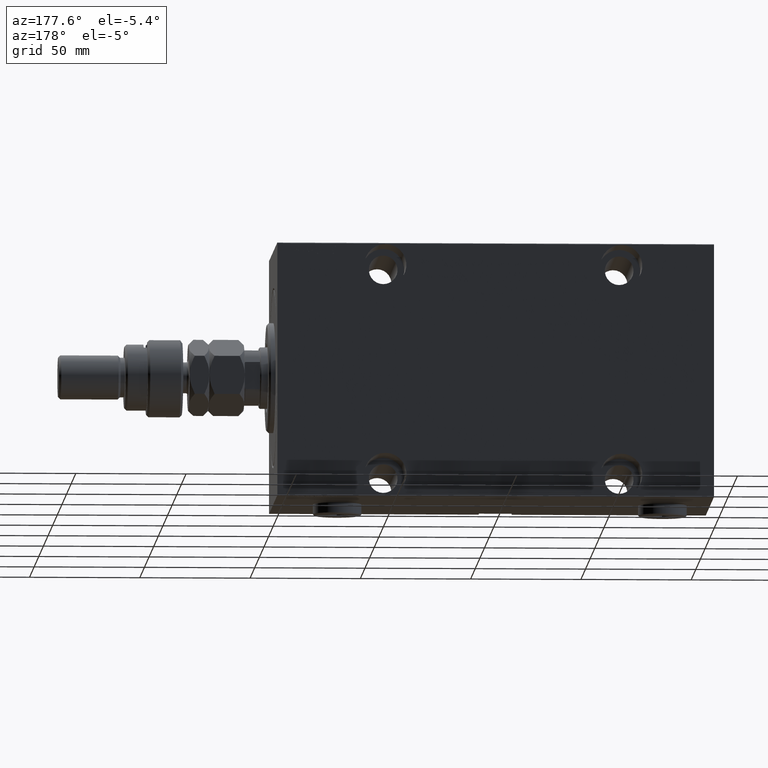
[diagram: clean part render]
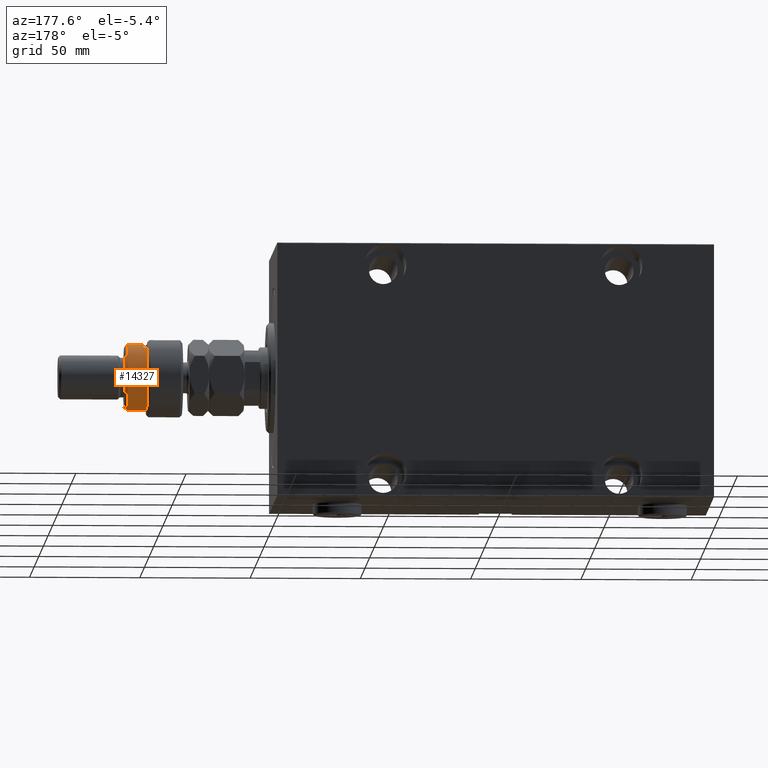
[diagram: same view with one face highlighted and labeled with its STEP entity id]
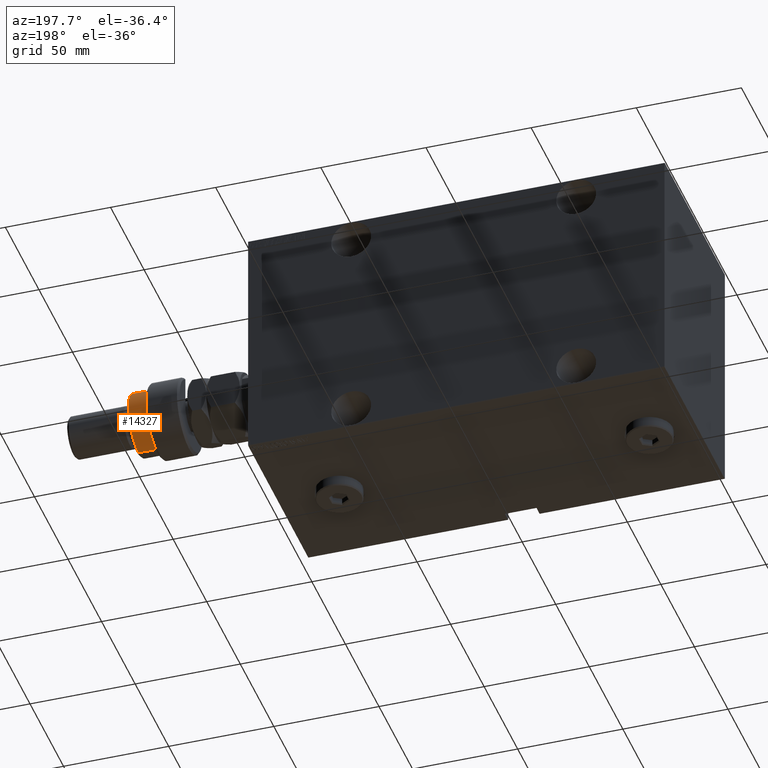
[diagram: same view with one face highlighted and labeled with its STEP entity id]
A machine part, auxiliary view. The second image highlights one B-rep face of the part: STEP entity #14327.
A second angle (auxiliary view) of the same face is appended — the face is thin or edge-on in the first view.
In plain terms, the highlighted cylindrical surface (edge-blend (fillet) strip) has radius 15 mm, axis along (-1, -0, 0).
Its self-contained STEP definition (entity closure, byte-faithful):
#516 = CARTESIAN_POINT ( 'NONE',  ( 0.000000000000000000, 0.000000000000000000, 24.99999999999997868 ) ) ;
#683 = VERTEX_POINT ( 'NONE', #44622 ) ;
#968 = CARTESIAN_POINT ( 'NONE',  ( 0.000000000000000000, 0.000000000000000000, 16.00000000000000000 ) ) ;
#3184 = CARTESIAN_POINT ( 'NONE',  ( 15.00000000000000000, 1.836970198721029589E-15, 16.00000000000000000 ) ) ;
#4991 = CIRCLE ( 'NONE', #13378, 15.00000000000000000 ) ;
#5598 = ORIENTED_EDGE ( 'NONE', *, *, #11530, .T. ) ;
#6323 = DIRECTION ( 'NONE',  ( 0.000000000000000000, 0.000000000000000000, 1.000000000000000000 ) ) ;
#7196 = CARTESIAN_POINT ( 'NONE',  ( 15.00000000000000000, 1.836970198721029589E-15, 24.99999999999997868 ) ) ;
#7782 = CARTESIAN_POINT ( 'NONE',  ( -15.00000000000000000, 0.000000000000000000, 17.50000000000000000 ) ) ;
#8244 = EDGE_CURVE ( 'NONE', #32074, #683, #30229, .T. ) ;
#8253 = CARTESIAN_POINT ( 'NONE',  ( 0.000000000000000000, 0.000000000000000000, 17.50000000000000000 ) ) ;
#9062 = CIRCLE ( 'NONE', #21980, 15.00000000000000000 ) ;
#9097 = VECTOR ( 'NONE', #25297, 1000.000000000000000 ) ;
#9400 = CARTESIAN_POINT ( 'NONE',  ( 15.00000000000000000, 1.836970198721029589E-15, 26.00000000000000355 ) ) ;
#9677 = CARTESIAN_POINT ( 'NONE',  ( -12.99038105676658006, 7.500000000000000000, 26.00000000000000355 ) ) ;
#11530 = EDGE_CURVE ( 'NONE', #14028, #26766, #38763, .T. ) ;
#12162 = ORIENTED_EDGE ( 'NONE', *, *, #31096, .T. ) ;
#13378 = AXIS2_PLACEMENT_3D ( 'NONE', #968, #27213, #30317 ) ;
#14028 = VERTEX_POINT ( 'NONE', #7196 ) ;
#14096 = EDGE_LOOP ( 'NONE', ( #46860, #5598, #12162, #31317, #17035, #32015 ) ) ;
#14327 = ADVANCED_FACE ( 'NONE', ( #36929 ), #35344, .T. ) ;
#14692 = VECTOR ( 'NONE', #23945, 1000.000000000000000 ) ;
#15075 = DIRECTION ( 'NONE',  ( 0.000000000000000000, 0.000000000000000000, -1.000000000000000000 ) ) ;
#16480 = CARTESIAN_POINT ( 'NONE',  ( -12.99038105676658006, 7.500000000000000000, 16.00000000000000000 ) ) ;
#17035 = ORIENTED_EDGE ( 'NONE', *, *, #8244, .F. ) ;
#18362 = LINE ( 'NONE', #25526, #9097 ) ;
#19005 = CARTESIAN_POINT ( 'NONE',  ( 0.000000000000000000, 0.000000000000000000, 26.00000000000000355 ) ) ;
#19248 = DIRECTION ( 'NONE',  ( -1.000000000000000000, 0.000000000000000000, 0.000000000000000000 ) ) ;
#21840 = AXIS2_PLACEMENT_3D ( 'NONE', #8253, #22805, #41444 ) ;
#21980 = AXIS2_PLACEMENT_3D ( 'NONE', #516, #15075, #32513 ) ;
#22805 = DIRECTION ( 'NONE',  ( 0.000000000000000000, 0.000000000000000000, -1.000000000000000000 ) ) ;
#23945 = DIRECTION ( 'NONE',  ( -0.000000000000000000, -0.000000000000000000, -1.000000000000000000 ) ) ;
#25297 = DIRECTION ( 'NONE',  ( -0.000000000000000000, -0.000000000000000000, -1.000000000000000000 ) ) ;
#25526 = CARTESIAN_POINT ( 'NONE',  ( -15.00000000000000000, 0.000000000000000000, 26.00000000000000355 ) ) ;
#26643 = DIRECTION ( 'NONE',  ( -0.000000000000000000, -0.000000000000000000, -1.000000000000000000 ) ) ;
#26766 = VERTEX_POINT ( 'NONE', #3184 ) ;
#27213 = DIRECTION ( 'NONE',  ( 0.000000000000000000, 0.000000000000000000, 1.000000000000000000 ) ) ;
#30229 = CIRCLE ( 'NONE', #21840, 15.00000000000000000 ) ;
#30317 = DIRECTION ( 'NONE',  ( 1.000000000000000000, 0.000000000000000000, 0.000000000000000000 ) ) ;
#30868 = CARTESIAN_POINT ( 'NONE',  ( -15.00000000000000000, 0.000000000000000000, 24.99999999999997868 ) ) ;
#31096 = EDGE_CURVE ( 'NONE', #26766, #46327, #4991, .T. ) ;
#31317 = ORIENTED_EDGE ( 'NONE', *, *, #32172, .T. ) ;
#32015 = ORIENTED_EDGE ( 'NONE', *, *, #40174, .F. ) ;
#32074 = VERTEX_POINT ( 'NONE', #7782 ) ;
#32172 = EDGE_CURVE ( 'NONE', #46327, #683, #33798, .T. ) ;
#32513 = DIRECTION ( 'NONE',  ( 1.000000000000000000, 0.000000000000000000, 0.000000000000000000 ) ) ;
#33343 = AXIS2_PLACEMENT_3D ( 'NONE', #19005, #26643, #19248 ) ;
#33798 = LINE ( 'NONE', #9677, #46978 ) ;
#35344 = CYLINDRICAL_SURFACE ( 'NONE', #33343, 15.00000000000000000 ) ;
#36929 = FACE_OUTER_BOUND ( 'NONE', #14096, .T. ) ;
#38763 = LINE ( 'NONE', #9400, #14692 ) ;
#40174 = EDGE_CURVE ( 'NONE', #42194, #32074, #18362, .T. ) ;
#41444 = DIRECTION ( 'NONE',  ( -1.000000000000000000, 0.000000000000000000, 0.000000000000000000 ) ) ;
#42194 = VERTEX_POINT ( 'NONE', #30868 ) ;
#42943 = EDGE_CURVE ( 'NONE', #42194, #14028, #9062, .T. ) ;
#44622 = CARTESIAN_POINT ( 'NONE',  ( -12.99038105676658006, 7.500000000000000000, 17.50000000000000000 ) ) ;
#46327 = VERTEX_POINT ( 'NONE', #16480 ) ;
#46860 = ORIENTED_EDGE ( 'NONE', *, *, #42943, .T. ) ;
#46978 = VECTOR ( 'NONE', #6323, 1000.000000000000000 ) ;